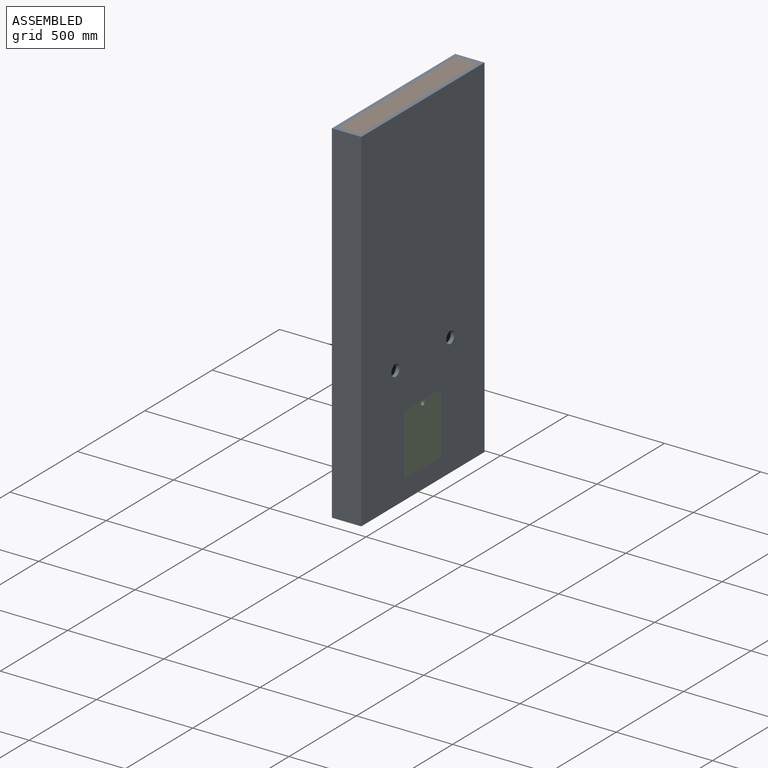
[diagram: assembled view]
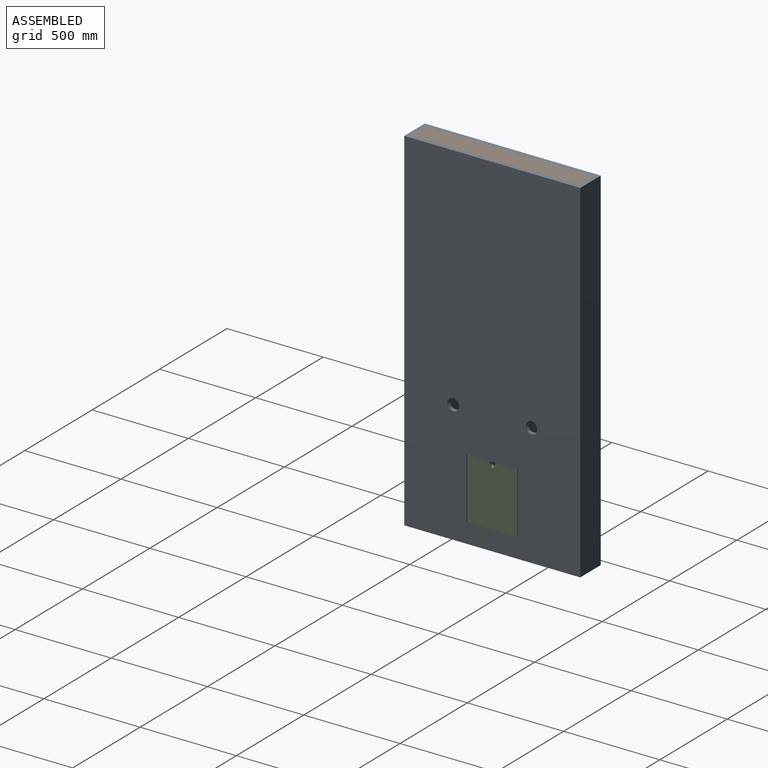
[diagram: assembled view, second angle]
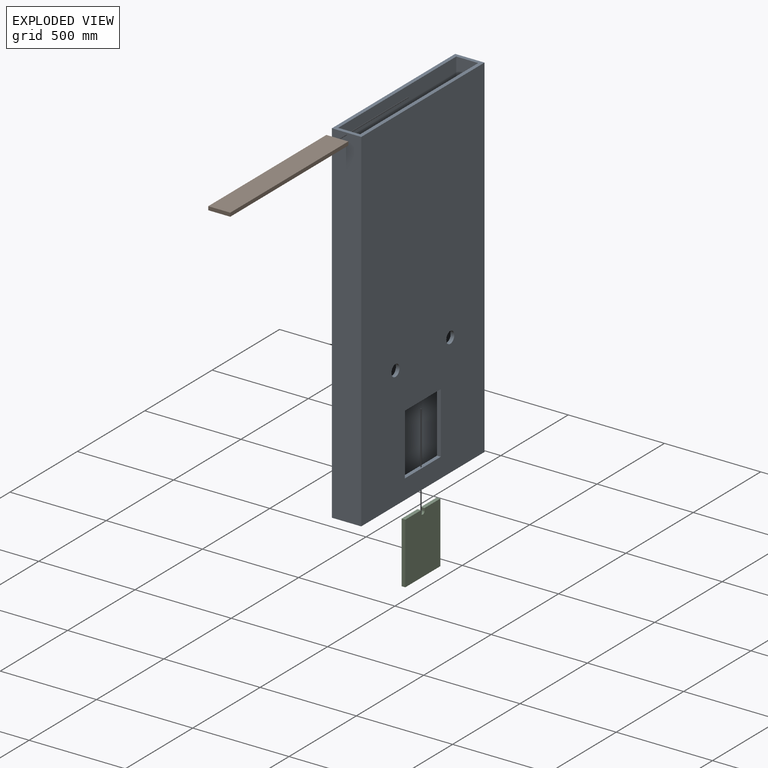
[diagram: exploded view]
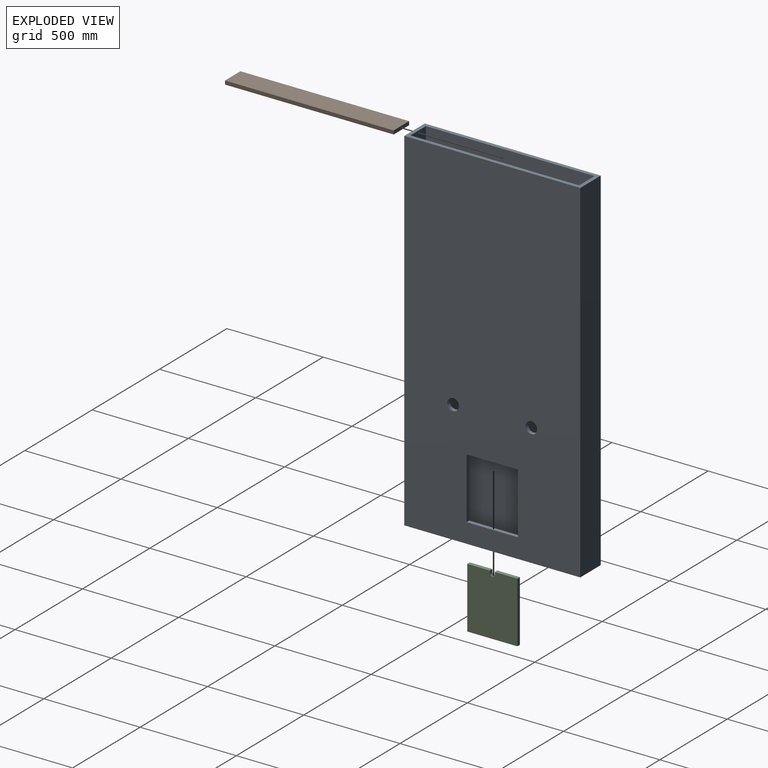
[diagram: exploded view, second angle]
ASSEMBLY  parts=3 mates=2
PART A: 16 faces, bbox 152.4x914.4x1828.8 mm
  f0: plane 1828.8x876.3mm, normal (-1,0,0), area 1512159.8mm2, adj f1,f7,f8,f9,f10,f11,f12,f13
  f1: plane 1828.8x114.3mm, normal (0,1,0), area 209031.8mm2, adj f0,f2,f8,f9
  f2: plane 1828.8x876.3mm, normal (1,0,0), area 1602577.4mm2, adj f1,f7,f8,f9
  f3: plane 1828.8x152.4mm, normal (0,-1,0), area 278709.1mm2, adj f4,f6,f8,f9
  f4: plane 1828.8x914.4mm, normal (1,0,0), area 1581837.1mm2, adj f3,f5,f8,f9,f10,f11,f12,f13
  f5: plane 1828.8x152.4mm, normal (0,1,0), area 278709.1mm2, adj f4,f6,f8,f9
  f6: plane 1828.8x914.4mm, normal (-1,0,0), area 1672254.7mm2, adj f3,f5,f8,f9
  f7: plane 1828.8x114.3mm, normal (0,-1,0), area 209031.8mm2, adj f0,f2,f8,f9
  f8: plane 914.4x152.4mm, normal (0,0,1), area 39193.5mm2, adj f0,f1,f2,f3,f4,f5,f6,f7
  f9: plane 914.4x152.4mm, normal (0,0,-1), area 39193.5mm2, adj f0,f1,f2,f3,f4,f5,f6,f7
  f10: plane 317.5x19.05mm, normal (0,1,0), area 6048.4mm2, adj f0,f4,f11,f13
  f11: plane 266.7x19.05mm, normal (0,0,1), area 5080.6mm2, adj f0,f4,f10,f12
  f12: plane 317.5x19.05mm, normal (0,-1,0), area 6048.4mm2, adj f0,f4,f11,f13
  f13: plane 266.7x19.05mm, normal (0,0,-1), area 5080.6mm2, adj f0,f4,f10,f12
  f14: cylinder r=30.23mm len=60.45mm, axis (1,0,0), area 3617.9mm2, adj f0,f4
  f15: cylinder r=30.23mm len=60.45mm, axis (1,0,0), area 3617.9mm2, adj f0,f4
PART B: 6 faces, bbox 114.3x876.3x19.1 mm
  f0: plane 114.3x19.05mm, normal (0,-1,0), area 2177.4mm2, adj f1,f3,f4,f5
  f1: plane 876.3x19.05mm, normal (1,0,0), area 16693.5mm2, adj f0,f2,f4,f5
  f2: plane 114.3x19.05mm, normal (0,1,0), area 2177.4mm2, adj f1,f3,f4,f5
  f3: plane 876.3x19.05mm, normal (-1,0,0), area 16693.5mm2, adj f0,f2,f4,f5
  f4: plane 876.3x114.3mm, normal (0,0,1), area 100161.1mm2, adj f0,f1,f2,f3
  f5: plane 876.3x114.3mm, normal (0,0,-1), area 100161.1mm2, adj f0,f1,f2,f3
PART C: 10 faces, bbox 19.1x260.4x317.5 mm
  f0: plane 19.05x12.7mm, normal (0,-1,0), area 241.9mm2, adj f1,f7,f8,f9
  f1: cylinder r=12.7mm len=25.4mm, axis (-1,0,0), area 760.1mm2, adj f0,f2,f8,f9
  f2: plane 19.05x12.7mm, normal (0,1,0), area 241.9mm2, adj f1,f3,f8,f9
  f3: plane 117.48x19.05mm, normal (0,0,1), area 2237.9mm2, adj f2,f4,f8,f9
  f4: plane 317.5x19.05mm, normal (0,-1,0), area 6048.4mm2, adj f3,f5,f8,f9
  f5: plane 260.35x19.05mm, normal (0,0,-1), area 4959.7mm2, adj f4,f6,f8,f9
  f6: plane 317.5x19.05mm, normal (0,1,0), area 6048.4mm2, adj f5,f7,f8,f9
  f7: plane 117.48x19.05mm, normal (0,0,1), area 2237.9mm2, adj f0,f6,f8,f9
  f8: plane 317.5x260.35mm, normal (1,0,0), area 82085.2mm2, adj f0,f1,f2,f3,f4,f5,f6,f7
  f9: plane 317.5x260.35mm, normal (-1,0,0), area 82085.2mm2, adj f0,f1,f2,f3,f4,f5,f6,f7
PLACE A t=(-609.95,255.84,-2.41)mm
PLACE B t=(-609.95,255.84,1807.34)mm
PLACE C t=(-552.8,255.84,257.94)mm
MATE planar C.f5 <-> A.f11  axis (0,0,-1) through (-533.75,255.84,99.19)mm
MATE planar B.f0 <-> A.f1  axis (0,-1,0) through (-609.95,-182.31,1826.39)mm
